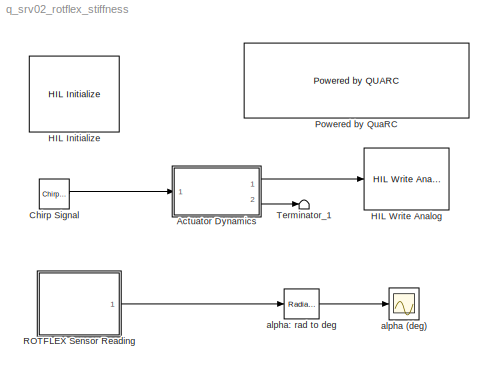
MODEL q_srv02_rotflex_stiffness
KIND model
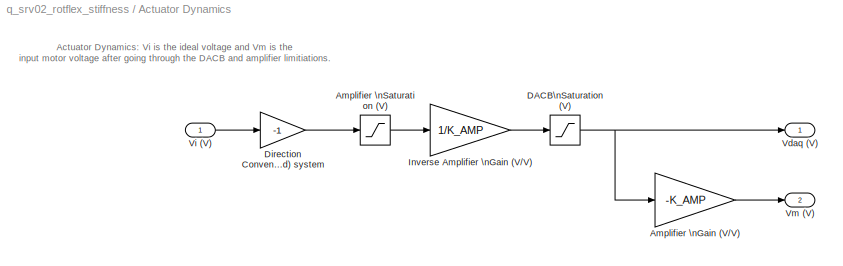
BLOCK [SubSystem] Actuator Dynamics
  Ports = [1, 2]
  RequestExecContextInheritance = off
  SID = 1
  Variant = off
BLOCK [Gain] Actuator Dynamics/Amplifier \nGain (V//V)
  Gain = -K_AMP
  OutDataTypeStr = Inherit: Inherit via internal rule
  ParamDataTypeStr = Inherit: Inherit via internal rule
  SID = 3
  SaturateOnIntegerOverflow = off
BLOCK [Saturate] Actuator Dynamics/Amplifier \nSaturation (V)
  InputPortMap = u0
  LowerLimit = -VMAX_AMP
  Ports = [1, 1]
  SID = 4
  UpperLimit = VMAX_AMP
BLOCK [Saturate] Actuator Dynamics/DACB\nSaturation (V)
  InputPortMap = u0
  LowerLimit = -VMAX_DAC
  Ports = [1, 1]
  SID = 5
  UpperLimit = VMAX_DAC
BLOCK [Gain] Actuator Dynamics/Direction Convention:\n(Right-Hand) system
  Gain = -1
  SID = 6
BLOCK [Gain] Actuator Dynamics/Inverse Amplifier \nGain (V//V)
  Gain = 1/K_AMP
  OutDataTypeStr = Inherit: Inherit via internal rule
  ParamDataTypeStr = Inherit: Inherit via internal rule
  SID = 7
  SaturateOnIntegerOverflow = off
BLOCK [Outport] Actuator Dynamics/Vdaq (V)
  IconDisplay = Port number
  SID = 8
BLOCK [Inport] Actuator Dynamics/Vi (V)
  IconDisplay = Port number
  SID = 2
BLOCK [Outport] Actuator Dynamics/Vm (V)
  IconDisplay = Port number
  Port = 2
  SID = 9
BLOCK [Reference] Chirp Signal  REF=simulink/Sources/Chirp Signal
  Ports = [0, 1]
  SID = 10
  SourceBlock = simulink/Sources/Chirp Signal
  SourceProductBaseCode = SL
  SourceProductName = Simulink
  SourceType = chirp
  T = 20
  VectorParams1D = on
  f1 = 0.2
  f2 = 10
BLOCK [Reference] HIL Initialize  REF=quarc_library/Data Acquisition/Generic/Configuration/HIL Initialize
  AttributesFormatString = (%<object_name>)
  Ports = []
  SID = 26
  SourceBlock = quarc_library/Data Acquisition/Generic/Configuration/HIL Initialize
  SourceProductName = QUARC Targets
  SourceType = HIL Initialize
  UserData = DataTag0
  UserDataPersistent = on
  active = on
  analog_input_channels = [0:1]
  analog_input_configurations = []
  analog_input_maximums = 10
  analog_input_minimums = -10
  analog_output_channels = [0:1]
  analog_output_maximums = 10
  analog_output_minimums = -10
  board_number = 0
  board_options = d0=digital;d1=digital;led=auto;update_rate=normal;decimation=1
  board_type = q2_usb
  clock_modes = []
  digital_input_channels = []
  digital_output_channels = []
  digital_output_configuration = []
  encoder_channels = [0:1]
  encoder_filter_frequency = []
  exclusive = off
  final_analog_outputs = [0]
  final_digital_outputs = [1]
  final_other_outputs = []
  final_pwm_outputs = [0]
  hardware_clocks = [0]
  initial_analog_outputs = [0]
  initial_clock_frequencies = []
  initial_digital_outputs = [1]
  initial_encoder_counts = [0]
  initial_other_outputs = []
  initial_pwm_outputs = [0]
  object_name = HIL-1
  other_output_channels = []
  pwm_alignment = []
  pwm_channels = []
  pwm_configuration = []
  pwm_frequency = 1/0.020
  pwm_leading_deadband = []
  pwm_modes = [0]
  pwm_polarity = []
  pwm_trailing_deadband = []
  quadrature = [4]
  set_analog_input_params_at_start = on
  set_analog_input_params_at_switch_in = off
  set_analog_output_params_at_start = on
  set_analog_output_params_at_switch_in = off
  set_analog_outputs_at_start = on
  set_analog_outputs_at_switch_in = off
  set_analog_outputs_at_switch_out = off
  set_analog_outputs_at_terminate = on
  set_analog_outputs_on_watchdog = off
  set_clock_frequencies_at_start = off
  set_clock_frequencies_at_switch_in = off
  set_clock_params_at_start = off
  set_clock_params_at_switch_in = off
  set_digital_output_params_at_start = off
  set_digital_output_params_at_switch_in = off
  set_digital_outputs_at_start = on
  set_digital_outputs_at_switch_in = off
  set_digital_outputs_at_switch_out = off
  set_digital_outputs_at_terminate = on
  set_digital_outputs_on_watchdog = off
  set_encoder_counts_at_start = on
  set_encoder_counts_at_switch_in = off
  set_encoder_params_at_start = on
  set_encoder_params_at_switch_in = off
  set_other_outputs_at_start = off
  set_other_outputs_at_switch_in = off
  set_other_outputs_at_switch_out = off
  set_other_outputs_at_terminate = off
  set_other_outputs_on_watchdog = off
  set_pwm_outputs_at_start = on
  set_pwm_outputs_at_switch_in = off
  set_pwm_outputs_at_switch_out = off
  set_pwm_outputs_at_terminate = on
  set_pwm_outputs_on_watchdog = off
  set_pwm_params_at_start = on
  set_pwm_params_at_switch_in = off
  watchdog_analog_outputs = 0
  watchdog_digital_outputs = [1]
  watchdog_other_outputs = []
  watchdog_pwm_outputs = [0]
BLOCK [Reference] HIL Write Analog  REF=quarc_library/Data Acquisition/Generic/Immediate I//O/HIL Write Analog
  AttributesFormatString = (%<object_name>)
  Ports = [1]
  SID = 12
  SourceBlock = quarc_library/Data Acquisition/Generic/Immediate I//O/HIL Write Analog
  SourceProductName = QUARC Targets
  SourceType = HIL Write Analog
  UserData = DataTag1
  UserDataPersistent = on
  active = off
  channels = 0
  object_name = HIL-1
  sample_time = -1
  vector_input = off
BLOCK [Reference] Powered by QuaRC  REF=quarc_library/Logos/Powered by QUARC
  Ports = []
  SID = 13
  SourceBlock = quarc_library/Logos/Powered by QUARC
  SourceProductName = QUARC Targets
  SourceType = Powered by QUARC
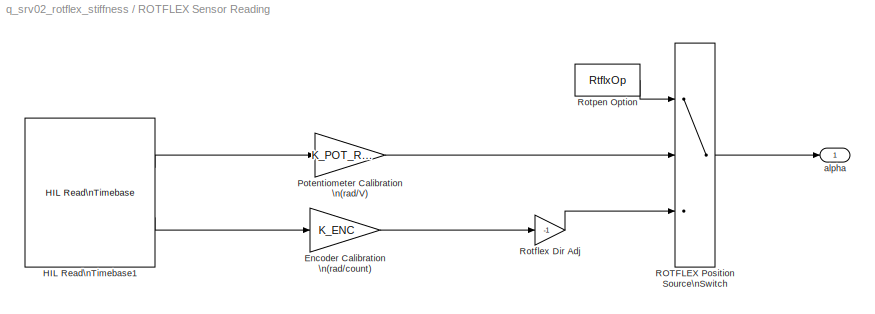
BLOCK [SubSystem] ROTFLEX Sensor Reading
  Ports = [0, 1]
  RequestExecContextInheritance = off
  SID = 14
  Variant = off
BLOCK [Gain] ROTFLEX Sensor Reading/Encoder Calibration \n(rad//count)
  Gain = K_ENC
  SID = 15
BLOCK [Reference] ROTFLEX Sensor Reading/HIL Read\nTimebase1  REF=quarc_library/Data Acquisition/Generic/Timebases/HIL Read\nTimebase
  AttributesFormatString = (%<object_name>)
  Ports = [0, 2]
  SID = 16
  SourceBlock = quarc_library/Data Acquisition/Generic/Timebases/HIL Read\nTimebase
  SourceProductName = QUARC Targets
  SourceType = HIL Read Timebase
  UserData = DataTag2
  UserDataPersistent = on
  active = on
  analog_channels = 1
  clock = 0
  data_type_mode = Inherit via back propagation
  digital_channels = []
  digital_data_type = boolean
  encoder_channels = 1
  encoder_data_type = double
  object_name = HIL-1
  other_channels = []
  samples_in_buffer = max(ceil(1/qc_get_step_size), 1)
  vector_output = on
BLOCK [Gain] ROTFLEX Sensor Reading/Potentiometer Calibration \n(rad//V)
  Gain = K_POT_ROT
  SID = 17
BLOCK [MultiPortSwitch] ROTFLEX Sensor Reading/ROTFLEX Position Source\nSwitch
  DataPortOrder = Zero-based contiguous
  InputSameDT = off
  Inputs = 2
  Ports = [3, 1]
  SID = 18
  SaturateOnIntegerOverflow = off
  zeroidx = on
BLOCK [Gain] ROTFLEX Sensor Reading/Rotflex Dir Adj
  Gain = -1
  OutDataTypeStr = Inherit: Inherit via internal rule
  ParamDataTypeStr = Inherit: Inherit via internal rule
  SID = 19
  SaturateOnIntegerOverflow = off
BLOCK [Constant] ROTFLEX Sensor Reading/Rotpen Option
  SID = 20
  Value = RtflxOp
BLOCK [Outport] ROTFLEX Sensor Reading/alpha
  IconDisplay = Port number
  InitialOutput = 0
  SID = 21
BLOCK [Terminator] Terminator_1
  SID = 22
BLOCK [Scope] alpha (deg)
  NumInputPorts = 1
  Ports = [1]
  SID = 23
  ScopeSpecificationString = Simulink.scopes.TimeScopeBlockCfg('CurrentConfiguration', extmgr.ConfigurationSet(extmgr.Configuration('Core','General UI',true),extmgr.Configuration('Core','Source UI',true),extmgr.Configuration('Sources','WiredSimulink',true,'DataLogging',true,'DataLoggingVariableName','data_alpha','DataLoggingSaveFormat','Array','DataLoggingDecimation','1','DataLoggingDecimateData',true),extmgr.Configuration('V...<+994ch>
BLOCK [Reference] alpha: rad to deg  REF=simulink_extras/Transformations/Radians\nto Degrees
  Ports = [1, 1]
  SID = 24
  SourceBlock = simulink_extras/Transformations/Radians\nto Degrees
  SourceProductBaseCode = SL
  SourceProductName = Simulink
  SourceType = RadiansToDegrees
ANNOTATION Actuator Dynamics: Actuator Dynamics: Vi is the ideal voltage and Vm is the \ninput motor voltage after going through the DACB and amplifier limitiations.
LINE Actuator Dynamics/Amplifier \nGain (V//V):1 -> Actuator Dynamics/Vm (V):1
LINE Actuator Dynamics/Amplifier \nSaturation (V):1 -> Actuator Dynamics/Inverse Amplifier \nGain (V//V):1
NET Actuator Dynamics/DACB\nSaturation (V):1 -> Actuator Dynamics/Amplifier \nGain (V//V):1, Actuator Dynamics/Vdaq (V):1
LINE Actuator Dynamics/Direction Convention:\n(Right-Hand) system:1 -> Actuator Dynamics/Amplifier \nSaturation (V):1
LINE Actuator Dynamics/Inverse Amplifier \nGain (V//V):1 -> Actuator Dynamics/DACB\nSaturation (V):1
LINE Actuator Dynamics/Vi (V):1 -> Actuator Dynamics/Direction Convention:\n(Right-Hand) system:1
LINE Actuator Dynamics:1 -> HIL Write Analog:1
LINE Actuator Dynamics:2 -> Terminator_1:1
LINE Chirp Signal:1 -> Actuator Dynamics:1
LINE ROTFLEX Sensor Reading/Encoder Calibration \n(rad//count):1 -> ROTFLEX Sensor Reading/Rotflex Dir Adj:1
LINE ROTFLEX Sensor Reading/HIL Read\nTimebase1:1 -> ROTFLEX Sensor Reading/Potentiometer Calibration \n(rad//V):1
LINE ROTFLEX Sensor Reading/HIL Read\nTimebase1:2 -> ROTFLEX Sensor Reading/Encoder Calibration \n(rad//count):1
LINE ROTFLEX Sensor Reading/Potentiometer Calibration \n(rad//V):1 -> ROTFLEX Sensor Reading/ROTFLEX Position Source\nSwitch:2
LINE ROTFLEX Sensor Reading/ROTFLEX Position Source\nSwitch:1 -> ROTFLEX Sensor Reading/alpha:1
LINE ROTFLEX Sensor Reading/Rotflex Dir Adj:1 -> ROTFLEX Sensor Reading/ROTFLEX Position Source\nSwitch:3
LINE ROTFLEX Sensor Reading/Rotpen Option:1 -> ROTFLEX Sensor Reading/ROTFLEX Position Source\nSwitch:1
LINE ROTFLEX Sensor Reading:1 -> alpha: rad to deg:1
LINE alpha: rad to deg:1 -> alpha (deg):1
note: NET lines group one-source signal fan-out (src -> all destinations, sorted); 1:1 wires keep LINE
